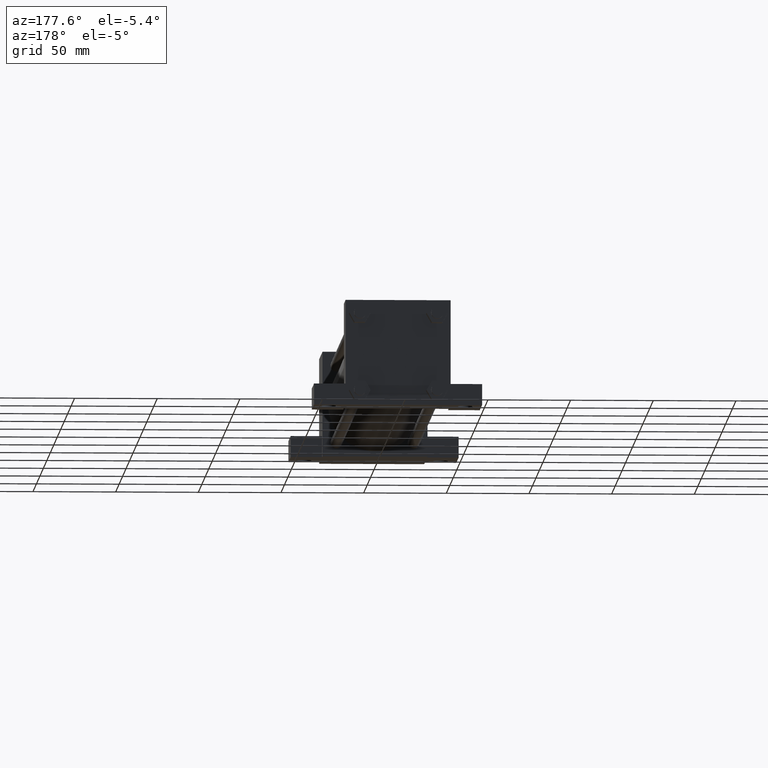
[diagram: clean part render]
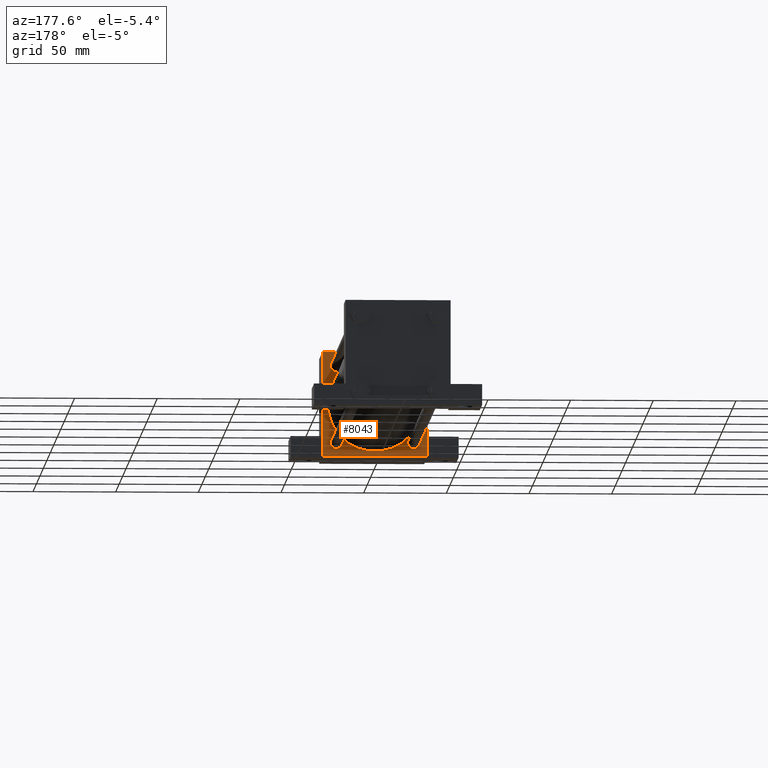
[diagram: same view with one face highlighted and labeled with its STEP entity id]
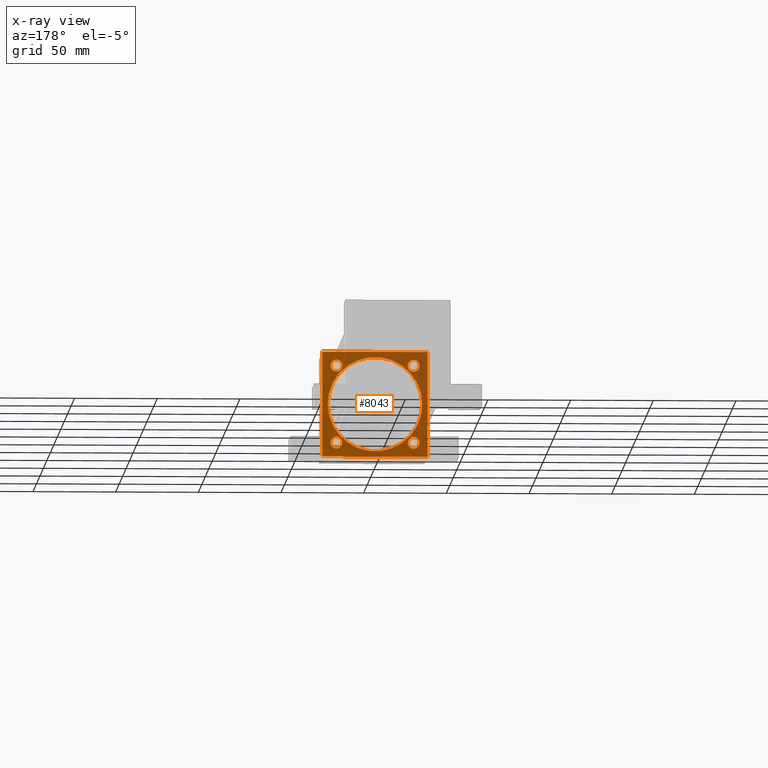
[diagram: x-ray of the same camera — body ghosted, the highlighted face saturated]
A machine part, auxiliary view. The second image highlights one B-rep face of the part: STEP entity #8043.
The next image is the same camera in x-ray: the body ghosted, the highlighted face saturated — about 50% of this face is hidden behind the body in this view.
In plain terms, the highlighted planar face has unit normal (0, -1, 0).
Its self-contained STEP definition (entity closure, byte-faithful):
#455=EDGE_CURVE('',#461,#461,#456,.T.);
#456=CIRCLE('',#457,3.568700000E+000);
#457=AXIS2_PLACEMENT_3D('',#458,#459,#460);
#458=CARTESIAN_POINT('',(2.336800000E+001,6.350000000E+001,-2.336800000E+001));
#459=DIRECTION('',(0.0E+000,1.0E+000,0.0E+000));
#460=DIRECTION('',(-1.0E+000,0.0E+000,0.0E+000));
#461=VERTEX_POINT('',#462);
#462=CARTESIAN_POINT('',(1.979930000E+001,6.350000000E+001,-2.336800000E+001));
#482=EDGE_CURVE('',#488,#488,#483,.T.);
#483=CIRCLE('',#484,3.568700000E+000);
#484=AXIS2_PLACEMENT_3D('',#485,#486,#487);
#485=CARTESIAN_POINT('',(-2.336800000E+001,6.350000000E+001,-2.336800000E+001));
#486=DIRECTION('',(0.0E+000,1.0E+000,0.0E+000));
#487=DIRECTION('',(-1.0E+000,0.0E+000,0.0E+000));
#488=VERTEX_POINT('',#489);
#489=CARTESIAN_POINT('',(-2.693670000E+001,6.350000000E+001,-2.336800000E+001));
#509=EDGE_CURVE('',#515,#515,#510,.T.);
#510=CIRCLE('',#511,3.568700000E+000);
#511=AXIS2_PLACEMENT_3D('',#512,#513,#514);
#512=CARTESIAN_POINT('',(-2.336800000E+001,6.350000000E+001,2.336800000E+001));
#513=DIRECTION('',(0.0E+000,1.0E+000,0.0E+000));
#514=DIRECTION('',(-1.0E+000,0.0E+000,0.0E+000));
#515=VERTEX_POINT('',#516);
#516=CARTESIAN_POINT('',(-2.693670000E+001,6.350000000E+001,2.336800000E+001));
#536=EDGE_CURVE('',#542,#542,#537,.T.);
#537=CIRCLE('',#538,3.568700000E+000);
#538=AXIS2_PLACEMENT_3D('',#539,#540,#541);
#539=CARTESIAN_POINT('',(2.336800000E+001,6.350000000E+001,2.336800000E+001));
#540=DIRECTION('',(0.0E+000,1.0E+000,0.0E+000));
#541=DIRECTION('',(-1.0E+000,0.0E+000,0.0E+000));
#542=VERTEX_POINT('',#543);
#543=CARTESIAN_POINT('',(1.979930000E+001,6.350000000E+001,2.336800000E+001));
#1238=EDGE_CURVE('',#1244,#1244,#1239,.T.);
#1239=CIRCLE('',#1240,2.857500000E+001);
#1240=AXIS2_PLACEMENT_3D('',#1241,#1242,#1243);
#1241=CARTESIAN_POINT('',(0.000000000E+000,6.350000000E+001,0.000000000E+000));
#1242=DIRECTION('',(0.0E+000,1.0E+000,0.0E+000));
#1243=DIRECTION('',(-1.0E+000,0.0E+000,0.0E+000));
#1244=VERTEX_POINT('',#1245);
#1245=CARTESIAN_POINT('',(-2.857500000E+001,6.350000000E+001,0.000000000E+000));
#2561=VERTEX_POINT('',#2562);
#2562=CARTESIAN_POINT('',(-3.175000000E+001,6.350000000E+001,3.175000000E+001));
#2563=EDGE_CURVE('',#2561,#2568,#2564,.T.);
#2564=LINE('',#2565,#2566);
#2565=CARTESIAN_POINT('',(-3.175000000E+001,6.350000000E+001,3.175000000E+001));
#2566=VECTOR('',#2567,1.0E+000);
#2567=DIRECTION('',(0.0E+000,0.0E+000,-1.0E+000));
#2568=VERTEX_POINT('',#2569);
#2569=CARTESIAN_POINT('',(-3.175000000E+001,6.350000000E+001,-3.175000000E+001));
#2597=VERTEX_POINT('',#2598);
#2598=CARTESIAN_POINT('',(3.175000000E+001,6.350000000E+001,3.175000000E+001));
#2599=EDGE_CURVE('',#2597,#2561,#2600,.T.);
#2600=LINE('',#2601,#2602);
#2601=CARTESIAN_POINT('',(3.175000000E+001,6.350000000E+001,3.175000000E+001));
#2602=VECTOR('',#2603,1.0E+000);
#2603=DIRECTION('',(-1.0E+000,0.0E+000,0.0E+000));
#2627=VERTEX_POINT('',#2628);
#2628=CARTESIAN_POINT('',(3.175000000E+001,6.350000000E+001,-3.175000000E+001));
#2629=EDGE_CURVE('',#2627,#2597,#2630,.T.);
#2630=LINE('',#2631,#2632);
#2631=CARTESIAN_POINT('',(3.175000000E+001,6.350000000E+001,-3.175000000E+001));
#2632=VECTOR('',#2633,1.0E+000);
#2633=DIRECTION('',(0.0E+000,0.0E+000,1.0E+000));
#2675=EDGE_CURVE('',#2568,#2627,#2676,.T.);
#2676=LINE('',#2677,#2678);
#2677=CARTESIAN_POINT('',(-3.175000000E+001,6.350000000E+001,-3.175000000E+001));
#2678=VECTOR('',#2679,1.0E+000);
#2679=DIRECTION('',(1.0E+000,0.0E+000,0.0E+000));
#2685=FACE_OUTER_BOUND('',#2691,.T.);
#2686=FACE_BOUND('',#2692,.T.);
#2687=FACE_BOUND('',#2693,.T.);
#2688=FACE_BOUND('',#2694,.T.);
#2689=FACE_BOUND('',#2695,.T.);
#2690=FACE_BOUND('',#2696,.T.);
#2691=EDGE_LOOP('',(#2697));
#2692=EDGE_LOOP('',(#2698));
#2693=EDGE_LOOP('',(#2699,#2700,#2701,#2702));
#2694=EDGE_LOOP('',(#2703));
#2695=EDGE_LOOP('',(#2704));
#2696=EDGE_LOOP('',(#2705));
#2697=ORIENTED_EDGE('',*,*,#536,.F.);
#2698=ORIENTED_EDGE('',*,*,#482,.F.);
#2699=ORIENTED_EDGE('',*,*,#2675,.F.);
#2700=ORIENTED_EDGE('',*,*,#2563,.F.);
#2701=ORIENTED_EDGE('',*,*,#2599,.F.);
#2702=ORIENTED_EDGE('',*,*,#2629,.F.);
#2703=ORIENTED_EDGE('',*,*,#455,.F.);
#2704=ORIENTED_EDGE('',*,*,#509,.F.);
#2705=ORIENTED_EDGE('',*,*,#1238,.F.);
#2706=PLANE('',#2707);
#2707=AXIS2_PLACEMENT_3D('',#2708,#2709,#2710);
#2708=CARTESIAN_POINT('',(3.175000000E+001,6.350000000E+001,-3.175000000E+001));
#2709=DIRECTION('',(0.0E+000,-1.0E+000,0.0E+000));
#2710=DIRECTION('',(0.0E+000,0.0E+000,-1.0E+000));
#8043=ADVANCED_FACE('',(#2685,#2686,#2687,#2688,#2689,#2690),#2706,.F.);